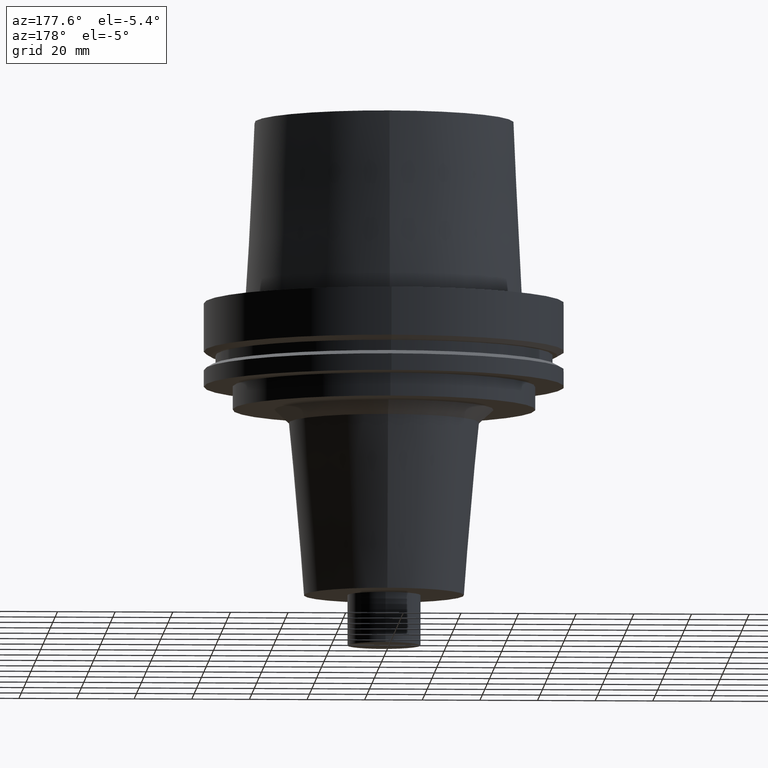
[diagram: clean part render]
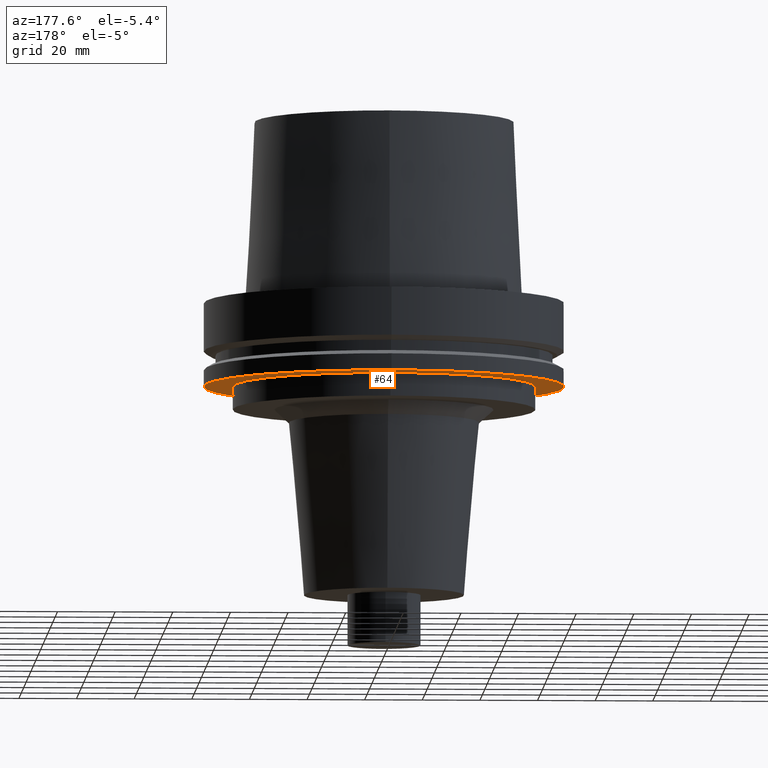
[diagram: same view with one face highlighted and labeled with its STEP entity id]
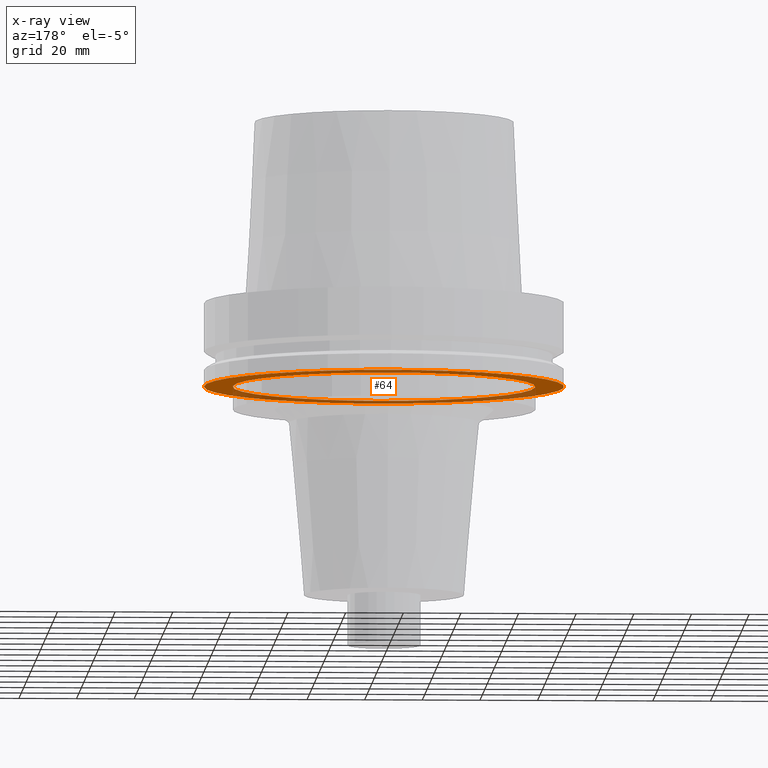
[diagram: x-ray of the same camera — body ghosted, the highlighted face saturated]
A machine part, auxiliary view. The second image highlights one B-rep face of the part: STEP entity #64.
The next image is the same camera in x-ray: the body ghosted, the highlighted face saturated — about 37% of this face is hidden behind the body in this view.
In plain terms, the highlighted planar face has unit normal (0, 0, -1).
Its self-contained STEP definition (entity closure, byte-faithful):
#64=ADVANCED_FACE('Unnamed[1]',(#173,#174),#175,.T.);
#71=EDGE_CURVE('Unnamed[1]',#185,#185,#186,.T.);
#95=EDGE_CURVE('Unnamed[1]',#223,#223,#224,.T.);
#173=FACE_BOUND('',#323,.T.);
#174=FACE_OUTER_BOUND('',#324,.T.);
#175=PLANE('',#325);
#185=VERTEX_POINT('',#338);
#186=CIRCLE('',#339,52.5000000000003);
#223=VERTEX_POINT('',#386);
#224=CIRCLE('',#387,62.5);
#323=EDGE_LOOP('',(#499));
#324=EDGE_LOOP('',(#500));
#325=AXIS2_PLACEMENT_3D('',#501,#502,#503);
#338=CARTESIAN_POINT('',(1.77573785876367E-015,52.5000000000003,-29.0000000000001));
#339=AXIS2_PLACEMENT_3D('',#513,#514,#515);
#386=CARTESIAN_POINT('',(1.77573785876367E-015,62.5,-29.0000000000001));
#387=AXIS2_PLACEMENT_3D('',#555,#556,#557);
#499=ORIENTED_EDGE('',*,*,#71,.F.);
#500=ORIENTED_EDGE('',*,*,#95,.T.);
#501=CARTESIAN_POINT('',(1.77573785876367E-015,57.5000000000002,-29.0000000000001));
#502=DIRECTION('',(6.12323399573677E-017,1.22464679914735E-016,-1.0));
#503=DIRECTION('',(-1.23259516440783E-032,1.0,1.22464679914735E-016));
#513=CARTESIAN_POINT('',(1.77573785876367E-015,3.55147571752733E-015,-29.0000000000001));
#514=DIRECTION('',(6.12323399573677E-017,1.22464679914735E-016,-1.0));
#515=DIRECTION('',(-1.23259516440783E-032,1.0,1.22464679914735E-016));
#555=CARTESIAN_POINT('',(1.77573785876367E-015,3.55147571752733E-015,-29.0000000000001));
#556=DIRECTION('',(6.12323399573677E-017,1.22464679914735E-016,-1.0));
#557=DIRECTION('',(-1.23259516440783E-032,1.0,1.22464679914735E-016));